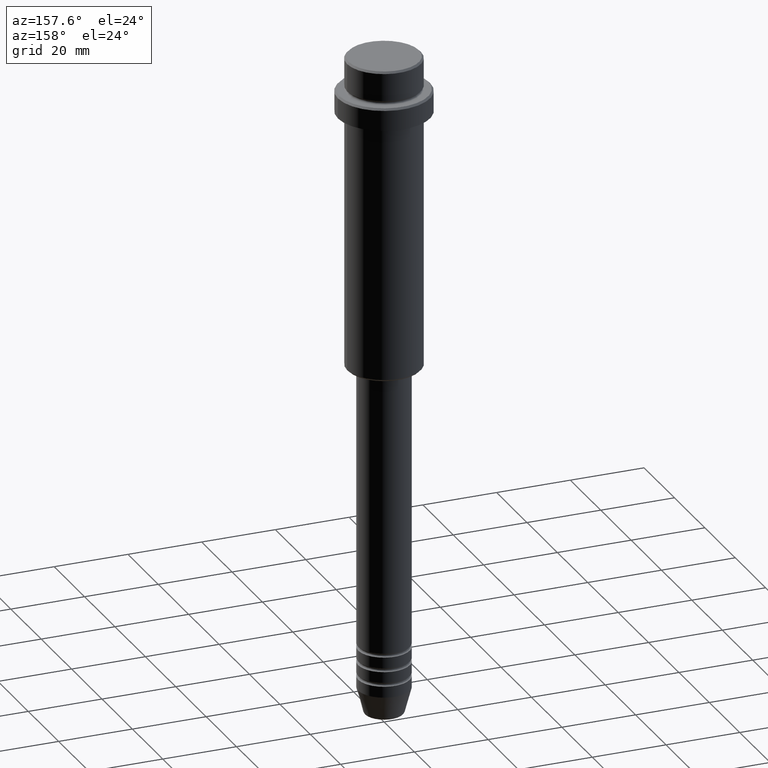
[diagram: clean part render]
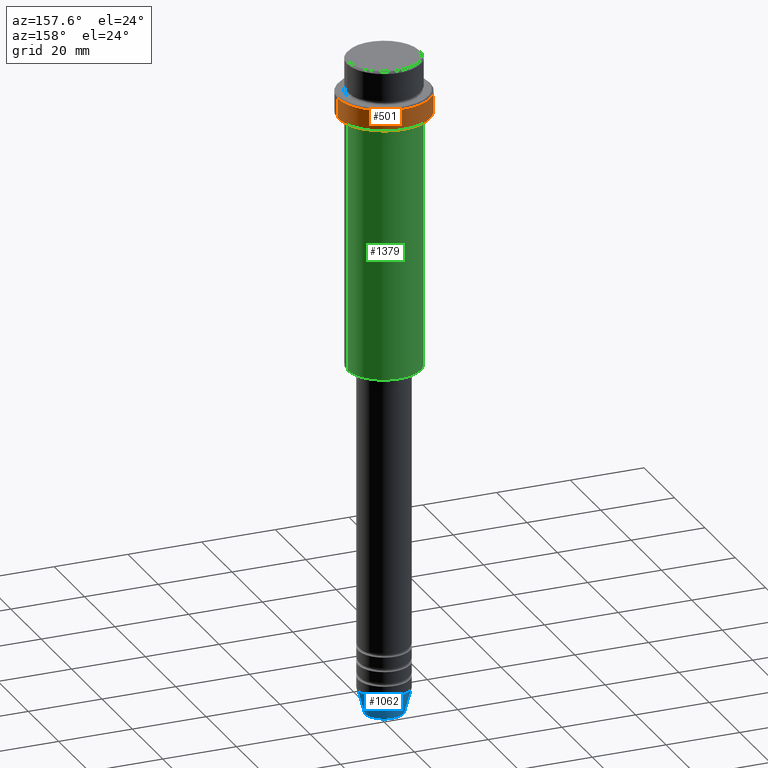
[diagram: same view with three faces highlighted in distinct colors, each labeled with its STEP entity id]
A machine part, auxiliary view with three faces highlighted in distinct colors.
Their STEP definitions:

[orange] entity #501 — the highlighted cylindrical surface (partial cylindrical patch) has radius 12.5 mm, axis along (-0, -0, 1).
#4 = FACE_OUTER_BOUND ( 'NONE', #552, .T. ) ;
#101 = LINE ( 'NONE', #529, #1381 ) ;
#102 = CARTESIAN_POINT ( 'NONE',  ( 0.000000000000000000, 0.000000000000000000, 0.000000000000000000 ) ) ;
#122 = CYLINDRICAL_SURFACE ( 'NONE', #152, 12.50000000000000000 ) ;
#152 = AXIS2_PLACEMENT_3D ( 'NONE', #102, #215, #867 ) ;
#210 = DIRECTION ( 'NONE',  ( 1.000000000000000000, 0.000000000000000000, 0.000000000000000000 ) ) ;
#213 = VERTEX_POINT ( 'NONE', #1114 ) ;
#215 = DIRECTION ( 'NONE',  ( -0.000000000000000000, -0.000000000000000000, 1.000000000000000000 ) ) ;
#222 = VERTEX_POINT ( 'NONE', #1339 ) ;
#256 = EDGE_CURVE ( 'NONE', #213, #1208, #836, .T. ) ;
#315 = CIRCLE ( 'NONE', #1383, 12.50000000000000000 ) ;
#345 = AXIS2_PLACEMENT_3D ( 'NONE', #1099, #1323, #1202 ) ;
#373 = ORIENTED_EDGE ( 'NONE', *, *, #1171, .T. ) ;
#393 = EDGE_CURVE ( 'NONE', #222, #723, #101, .T. ) ;
#400 = CARTESIAN_POINT ( 'NONE',  ( 12.50000000000000000, 0.000000000000000000, -9.500000000000005329 ) ) ;
#448 = VECTOR ( 'NONE', #605, 1000.000000000000000 ) ;
#501 = ADVANCED_FACE ( 'NONE', ( #4 ), #122, .T. ) ;
#529 = CARTESIAN_POINT ( 'NONE',  ( -12.50000000000000000, 1.530808498934191521E-15, 0.000000000000000000 ) ) ;
#531 = EDGE_CURVE ( 'NONE', #723, #1208, #949, .T. ) ;
#552 = EDGE_LOOP ( 'NONE', ( #373, #746, #631, #1362 ) ) ;
#605 = DIRECTION ( 'NONE',  ( -0.000000000000000000, -0.000000000000000000, 1.000000000000000000 ) ) ;
#631 = ORIENTED_EDGE ( 'NONE', *, *, #531, .T. ) ;
#723 = VERTEX_POINT ( 'NONE', #1375 ) ;
#746 = ORIENTED_EDGE ( 'NONE', *, *, #393, .T. ) ;
#836 = LINE ( 'NONE', #923, #448 ) ;
#867 = DIRECTION ( 'NONE',  ( 1.000000000000000000, 0.000000000000000000, 0.000000000000000000 ) ) ;
#923 = CARTESIAN_POINT ( 'NONE',  ( 12.50000000000000000, 0.000000000000000000, 0.000000000000000000 ) ) ;
#949 = CIRCLE ( 'NONE', #345, 12.50000000000000000 ) ;
#1099 = CARTESIAN_POINT ( 'NONE',  ( 0.000000000000000000, 0.000000000000000000, -9.500000000000005329 ) ) ;
#1114 = CARTESIAN_POINT ( 'NONE',  ( 12.50000000000000000, 0.000000000000000000, -15.00000000000000000 ) ) ;
#1165 = CARTESIAN_POINT ( 'NONE',  ( 0.000000000000000000, 0.000000000000000000, -15.00000000000000000 ) ) ;
#1171 = EDGE_CURVE ( 'NONE', #213, #222, #315, .T. ) ;
#1187 = DIRECTION ( 'NONE',  ( -0.000000000000000000, -0.000000000000000000, 1.000000000000000000 ) ) ;
#1202 = DIRECTION ( 'NONE',  ( 1.000000000000000000, 0.000000000000000000, 0.000000000000000000 ) ) ;
#1208 = VERTEX_POINT ( 'NONE', #400 ) ;
#1289 = DIRECTION ( 'NONE',  ( -0.000000000000000000, -0.000000000000000000, 1.000000000000000000 ) ) ;
#1323 = DIRECTION ( 'NONE',  ( 0.000000000000000000, 0.000000000000000000, -1.000000000000000000 ) ) ;
#1339 = CARTESIAN_POINT ( 'NONE',  ( -12.50000000000000000, 1.530808498934191521E-15, -15.00000000000000000 ) ) ;
#1362 = ORIENTED_EDGE ( 'NONE', *, *, #256, .F. ) ;
#1375 = CARTESIAN_POINT ( 'NONE',  ( -12.50000000000000000, 1.530808498934191521E-15, -9.500000000000005329 ) ) ;
#1381 = VECTOR ( 'NONE', #1289, 1000.000000000000000 ) ;
#1383 = AXIS2_PLACEMENT_3D ( 'NONE', #1165, #1187, #210 ) ;

[blue] entity #1062 — the highlighted conical surface has half-angle 15 deg.
#20 = DIRECTION ( 'NONE',  ( 1.000000000000000000, 0.000000000000000000, 0.000000000000000000 ) ) ;
#70 = ORIENTED_EDGE ( 'NONE', *, *, #458, .T. ) ;
#117 = VECTOR ( 'NONE', #455, 1000.000000000000000 ) ;
#132 = CARTESIAN_POINT ( 'NONE',  ( 7.000000000000000000, 0.000000000000000000, -173.0000000000000000 ) ) ;
#175 = VERTEX_POINT ( 'NONE', #361 ) ;
#191 = DIRECTION ( 'NONE',  ( -0.000000000000000000, -0.000000000000000000, 1.000000000000000000 ) ) ;
#192 = EDGE_CURVE ( 'NONE', #688, #1044, #406, .T. ) ;
#309 = FACE_OUTER_BOUND ( 'NONE', #1368, .T. ) ;
#333 = DIRECTION ( 'NONE',  ( 1.000000000000000000, 0.000000000000000000, 0.000000000000000000 ) ) ;
#361 = CARTESIAN_POINT ( 'NONE',  ( 7.000000000000000000, 0.000000000000000000, -173.0000000000000000 ) ) ;
#406 = CIRCLE ( 'NONE', #487, 5.223655072137191269 ) ;
#455 = DIRECTION ( 'NONE',  ( 0.2588190451025214056, 0.000000000000000000, 0.9659258262890680902 ) ) ;
#458 = EDGE_CURVE ( 'NONE', #1044, #1133, #981, .T. ) ;
#470 = VECTOR ( 'NONE', #672, 1000.000000000000000 ) ;
#481 = EDGE_CURVE ( 'NONE', #175, #1133, #1293, .T. ) ;
#487 = AXIS2_PLACEMENT_3D ( 'NONE', #902, #1328, #20 ) ;
#506 = CARTESIAN_POINT ( 'NONE',  ( 0.000000000000000000, 0.000000000000000000, -173.0000000000000000 ) ) ;
#533 = CARTESIAN_POINT ( 'NONE',  ( 5.223655072137191269, 0.000000000000000000, -179.6294095225512422 ) ) ;
#535 = ORIENTED_EDGE ( 'NONE', *, *, #1280, .F. ) ;
#555 = LINE ( 'NONE', #132, #117 ) ;
#666 = CONICAL_SURFACE ( 'NONE', #928, 7.000000000000000000, 0.2617993877991501295 ) ;
#672 = DIRECTION ( 'NONE',  ( -0.2588190451025214056, 3.169619151431772953E-17, 0.9659258262890680902 ) ) ;
#688 = VERTEX_POINT ( 'NONE', #533 ) ;
#717 = ORIENTED_EDGE ( 'NONE', *, *, #192, .T. ) ;
#729 = CARTESIAN_POINT ( 'NONE',  ( -7.000000000000000000, 8.572527594031473190E-16, -173.0000000000000000 ) ) ;
#839 = DIRECTION ( 'NONE',  ( 1.000000000000000000, 0.000000000000000000, 0.000000000000000000 ) ) ;
#874 = CARTESIAN_POINT ( 'NONE',  ( 0.000000000000000000, 0.000000000000000000, -173.0000000000000000 ) ) ;
#902 = CARTESIAN_POINT ( 'NONE',  ( 0.000000000000000000, 0.000000000000000000, -179.6294095225512422 ) ) ;
#928 = AXIS2_PLACEMENT_3D ( 'NONE', #506, #191, #839 ) ;
#970 = CARTESIAN_POINT ( 'NONE',  ( -7.000000000000000000, 8.572527594031473190E-16, -173.0000000000000000 ) ) ;
#981 = LINE ( 'NONE', #970, #470 ) ;
#1019 = AXIS2_PLACEMENT_3D ( 'NONE', #874, #1308, #333 ) ;
#1044 = VERTEX_POINT ( 'NONE', #1359 ) ;
#1062 = ADVANCED_FACE ( 'NONE', ( #309 ), #666, .T. ) ;
#1133 = VERTEX_POINT ( 'NONE', #729 ) ;
#1174 = ORIENTED_EDGE ( 'NONE', *, *, #481, .F. ) ;
#1280 = EDGE_CURVE ( 'NONE', #688, #175, #555, .T. ) ;
#1293 = CIRCLE ( 'NONE', #1019, 7.000000000000000000 ) ;
#1308 = DIRECTION ( 'NONE',  ( -0.000000000000000000, -0.000000000000000000, 1.000000000000000000 ) ) ;
#1328 = DIRECTION ( 'NONE',  ( -0.000000000000000000, -0.000000000000000000, 1.000000000000000000 ) ) ;
#1359 = CARTESIAN_POINT ( 'NONE',  ( -5.223655072137191269, 7.484830028987061160E-16, -179.6294095225512422 ) ) ;
#1368 = EDGE_LOOP ( 'NONE', ( #717, #70, #1174, #535 ) ) ;

[green] entity #1379 — the highlighted cylindrical surface (partial cylindrical patch) has radius 10 mm, axis along (-0, -0, 1).
#34 = EDGE_CURVE ( 'NONE', #1150, #330, #246, .T. ) ;
#67 = VERTEX_POINT ( 'NONE', #461 ) ;
#95 = EDGE_CURVE ( 'NONE', #330, #67, #245, .T. ) ;
#106 = ORIENTED_EDGE ( 'NONE', *, *, #558, .F. ) ;
#140 = VERTEX_POINT ( 'NONE', #565 ) ;
#245 = LINE ( 'NONE', #580, #516 ) ;
#246 = CIRCLE ( 'NONE', #681, 9.999999999999998224 ) ;
#251 = EDGE_LOOP ( 'NONE', ( #936, #603, #391, #106 ) ) ;
#282 = EDGE_CURVE ( 'NONE', #140, #67, #382, .T. ) ;
#330 = VERTEX_POINT ( 'NONE', #945 ) ;
#363 = VECTOR ( 'NONE', #1416, 1000.000000000000000 ) ;
#371 = DIRECTION ( 'NONE',  ( -0.000000000000000000, -0.000000000000000000, 1.000000000000000000 ) ) ;
#382 = CIRCLE ( 'NONE', #1227, 9.999999999999998224 ) ;
#391 = ORIENTED_EDGE ( 'NONE', *, *, #282, .F. ) ;
#402 = DIRECTION ( 'NONE',  ( -0.000000000000000000, -0.000000000000000000, 1.000000000000000000 ) ) ;
#461 = CARTESIAN_POINT ( 'NONE',  ( -9.999999999999998224, 1.224646799147353059E-15, -16.00000000000000000 ) ) ;
#516 = VECTOR ( 'NONE', #371, 1000.000000000000000 ) ;
#546 = CARTESIAN_POINT ( 'NONE',  ( 9.999999999999998224, 0.000000000000000000, 0.000000000000000000 ) ) ;
#558 = EDGE_CURVE ( 'NONE', #1150, #140, #665, .T. ) ;
#565 = CARTESIAN_POINT ( 'NONE',  ( 9.999999999999998224, 0.000000000000000000, -16.00000000000000000 ) ) ;
#580 = CARTESIAN_POINT ( 'NONE',  ( -9.999999999999998224, 1.224646799147353059E-15, 0.000000000000000000 ) ) ;
#603 = ORIENTED_EDGE ( 'NONE', *, *, #95, .T. ) ;
#651 = DIRECTION ( 'NONE',  ( -1.000000000000000000, 0.000000000000000000, 0.000000000000000000 ) ) ;
#665 = LINE ( 'NONE', #546, #363 ) ;
#674 = DIRECTION ( 'NONE',  ( -0.000000000000000000, -0.000000000000000000, 1.000000000000000000 ) ) ;
#681 = AXIS2_PLACEMENT_3D ( 'NONE', #1268, #726, #651 ) ;
#707 = AXIS2_PLACEMENT_3D ( 'NONE', #1403, #674, #1082 ) ;
#726 = DIRECTION ( 'NONE',  ( -0.000000000000000000, -0.000000000000000000, 1.000000000000000000 ) ) ;
#811 = CARTESIAN_POINT ( 'NONE',  ( 0.000000000000000000, 0.000000000000000000, -16.00000000000000000 ) ) ;
#936 = ORIENTED_EDGE ( 'NONE', *, *, #34, .T. ) ;
#945 = CARTESIAN_POINT ( 'NONE',  ( -9.999999999999998224, 1.224646799147353059E-15, -84.49999999999998579 ) ) ;
#1082 = DIRECTION ( 'NONE',  ( 1.000000000000000000, 0.000000000000000000, 0.000000000000000000 ) ) ;
#1089 = FACE_OUTER_BOUND ( 'NONE', #251, .T. ) ;
#1150 = VERTEX_POINT ( 'NONE', #1283 ) ;
#1227 = AXIS2_PLACEMENT_3D ( 'NONE', #811, #402, #1278 ) ;
#1268 = CARTESIAN_POINT ( 'NONE',  ( 0.000000000000000000, 0.000000000000000000, -84.49999999999998579 ) ) ;
#1278 = DIRECTION ( 'NONE',  ( 1.000000000000000000, 0.000000000000000000, 0.000000000000000000 ) ) ;
#1283 = CARTESIAN_POINT ( 'NONE',  ( 9.999999999999998224, 0.000000000000000000, -84.49999999999998579 ) ) ;
#1318 = CYLINDRICAL_SURFACE ( 'NONE', #707, 9.999999999999998224 ) ;
#1379 = ADVANCED_FACE ( 'NONE', ( #1089 ), #1318, .T. ) ;
#1403 = CARTESIAN_POINT ( 'NONE',  ( 0.000000000000000000, 0.000000000000000000, 0.000000000000000000 ) ) ;
#1416 = DIRECTION ( 'NONE',  ( -0.000000000000000000, -0.000000000000000000, 1.000000000000000000 ) ) ;